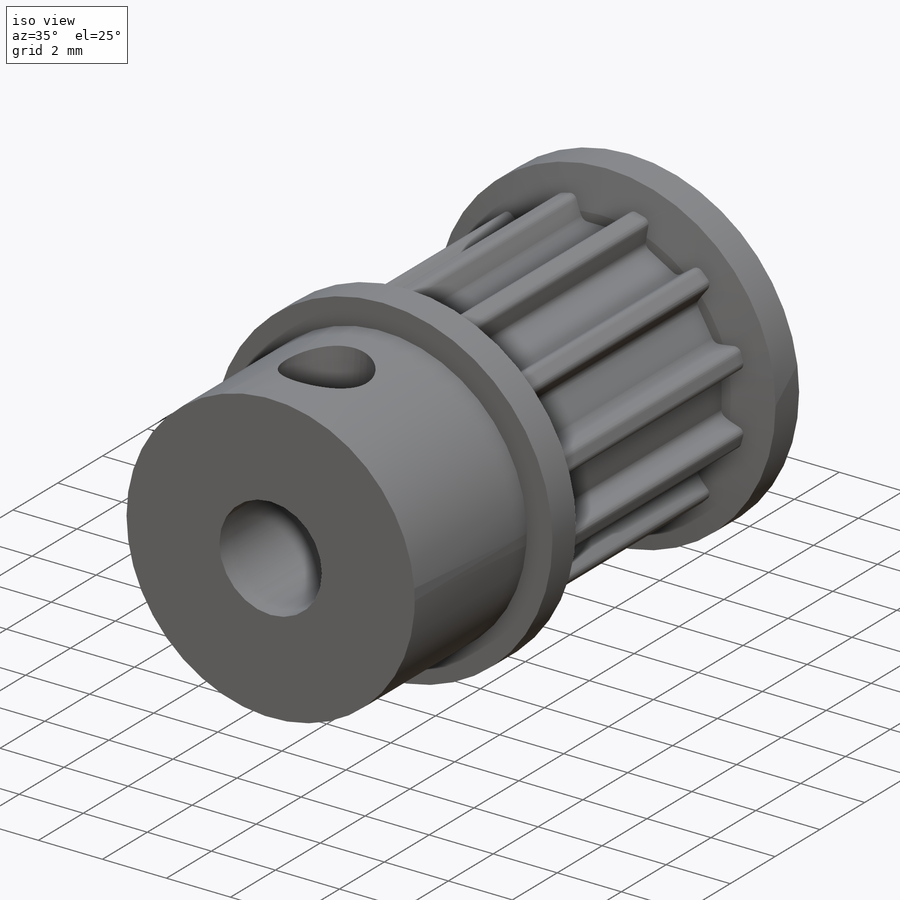
[diagram: iso view]
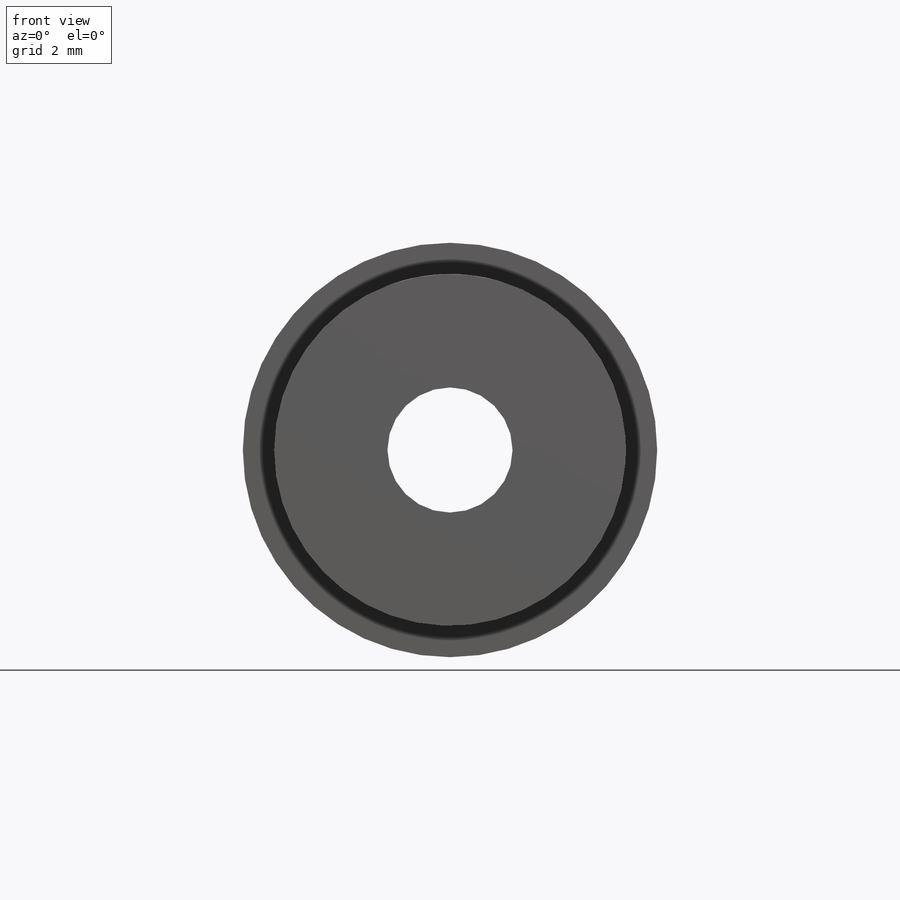
[diagram: front view]
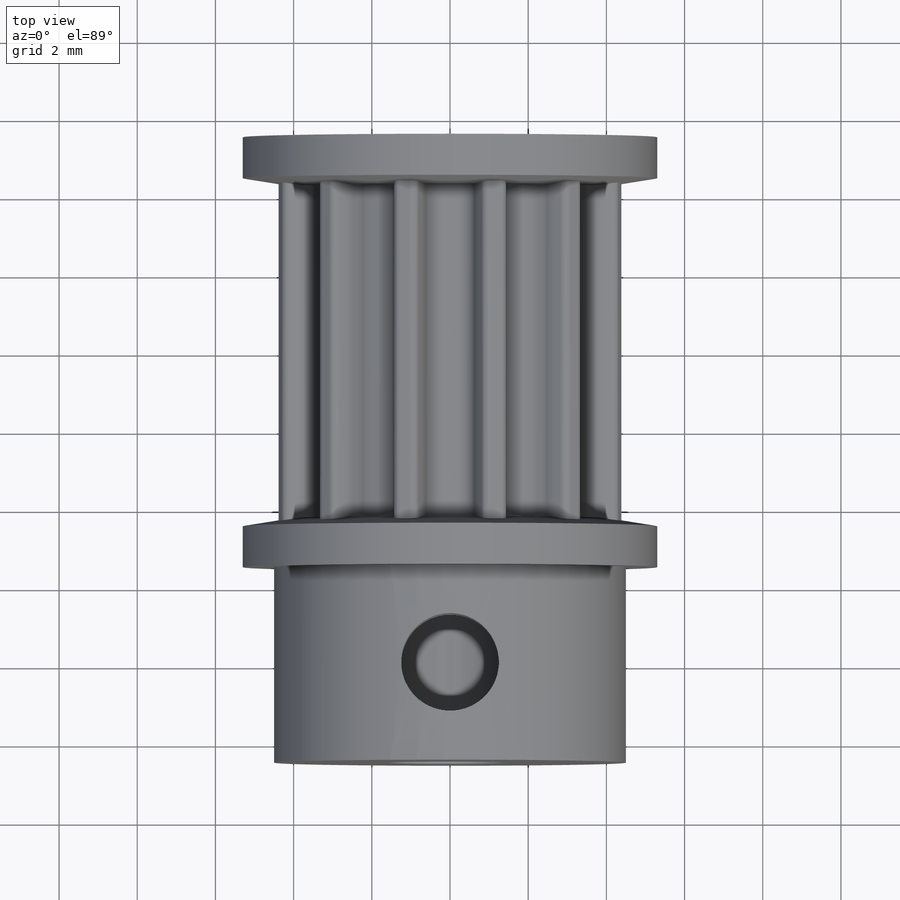
[diagram: top view]
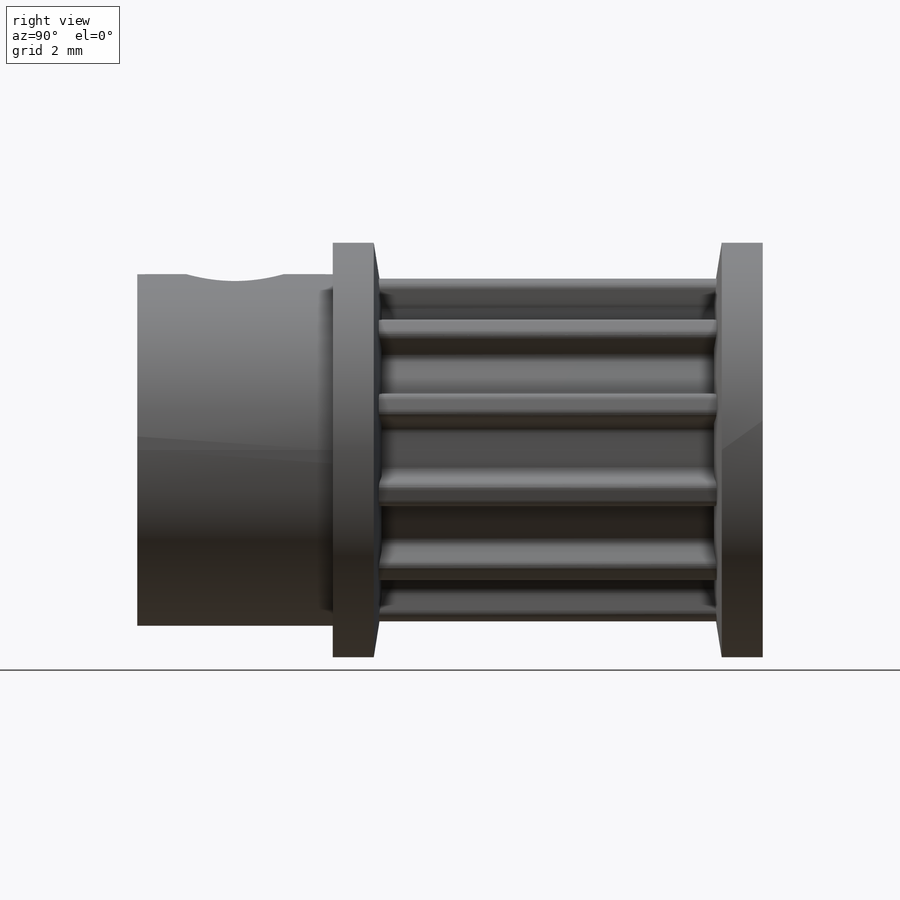
[diagram: right view]
SOLIDWORKS PART (.sldprt)
format: sldprt  version: not decoded by parser v0  size: 606,208 bytes
history: native  units: mm
features: sketch x6, plane x3, extrude x3, cut_extrude x3, material x1, pattern_circular x1, chamfer x1, mirror x1 + 1 further entry (+10 scaffold rows collapsed)
feature tree (30):
  scaffold x10  (default folders/planes/origin — collapsed)
  material  "2014 Legierung"
  plane  "Ebene vorne"
  plane  "Ebene oben"
  plane  "Ebene rechts"
  "Tabelle"
  sketch  "Skizze1"  dims[c1.D1=~157.420057mm c1.D3=~157.112938mm c2.D1=~101.747502mm c2.D6=29.0mm c2.d0=9.0mm c3.D1=~11.533652mm c3.D2=10.2mm c4.D1=~14.463868mm c4.D2=~10.184839mm c5.D2=~77.835663deg c5.D3=~16.578939mm c5.D4=~47.375655mm c5.D5=~149.860262mm c6.D5=4.8deg c6.D1=0.7mm c6.D2=~3.214131mm c7.D2=19.0deg c7.D6=~2.47476mm c8.D2=~2.458082mm c8.D1=0.6mm c8.D3=1.2mm c8.D4=0.8mm c8.D6=~2.477657mm c9.D2=~2.458801mm]
  extrude  "Aufsatz-Linear austragen1"  Depth=8.5mm
  sketch  "Skizze2"  dims[c1.D1=0.2mm c1.D2=0.1mm c1.hg=0.75mm c2.D1=~2.706844mm c2.alpha=25.0deg c2.br=1.75mm]
  cut_extrude  "Schnitt-Linear austragen1"  [1 undecoded]
  pattern_circular  "Kreismuster3"  Count=12 Angle=360deg
  sketch  "Skizze3"  dims[D1=10.6mm D2=3.2mm D3=9.0mm D4=6.0mm D5=2.0mm]
  extrude  "Aufsatz-Linear austragen2"  Depth=1.25mm
  chamfer  "Fase1"  Distance=1.25mm
  mirror  "Spiegeln1"
  extrude  "Aufsatz-Linear austragen3"  [1 undecoded]
  sketch  "Skizze3<3>"  dims[D1=5.0mm]
  cut_extrude  "Schnitt-Linear austragen2"  [1 undecoded]
  sketch  "Skizze3<4>"
  sketch  "Skizze5"  dims[D1=2.5mm D2=2.5mm D3=13.5mm]
  cut_extrude  "Schnitt-Linear austragen3"  [1 undecoded]
decode coverage: 9 of 15 modeling features carry decoded parameters; 1 rows unclassified (native names shown)
note: ~ marks probable driven/reference dimensions
note: 4 parameter values undecoded
summary: no parameter record found for 4 features
note: suppression state not decoded; provenance and decode notes live in map.json
